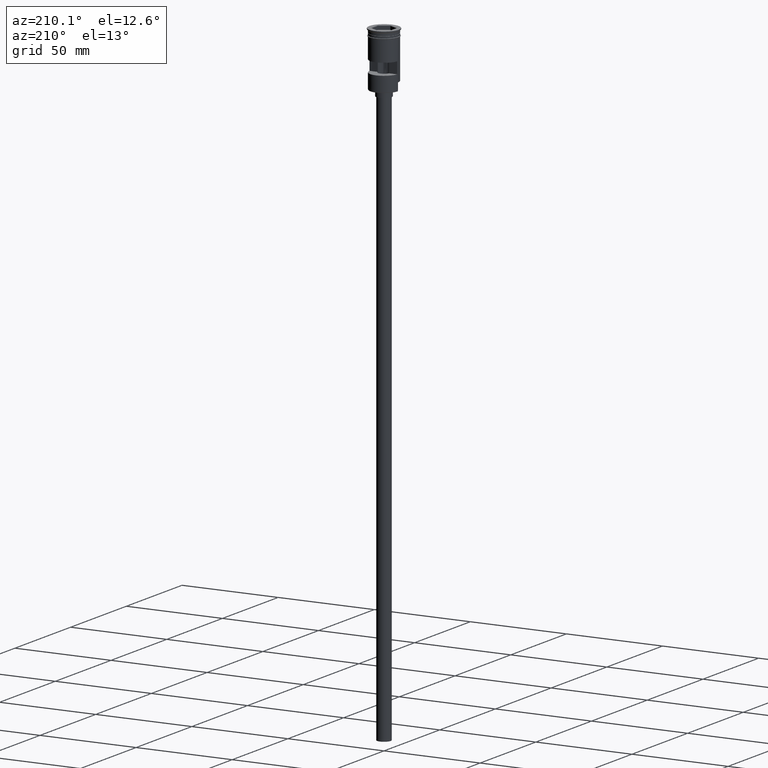
[diagram: clean part render]
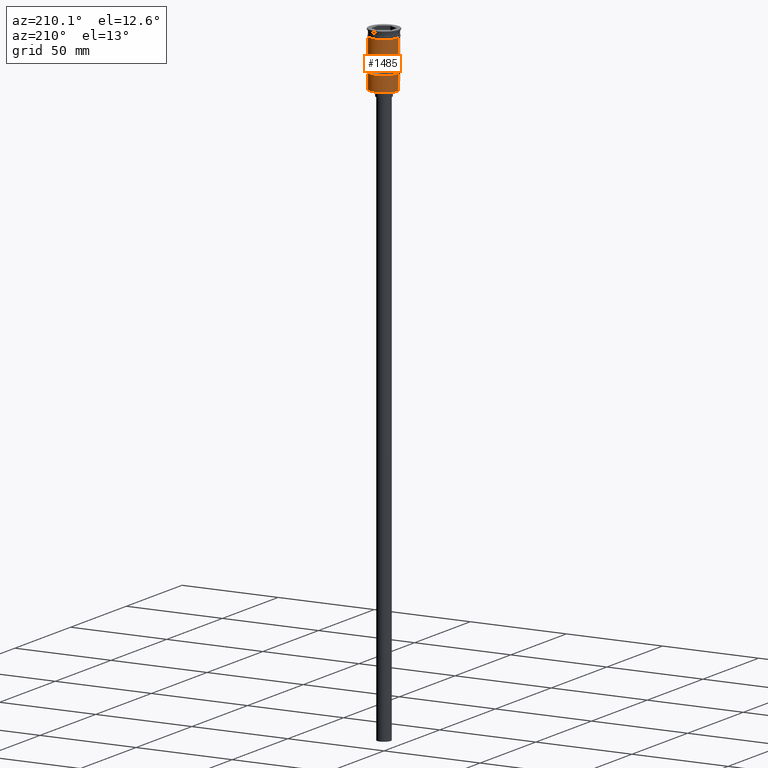
[diagram: same view with one face highlighted and labeled with its STEP entity id]
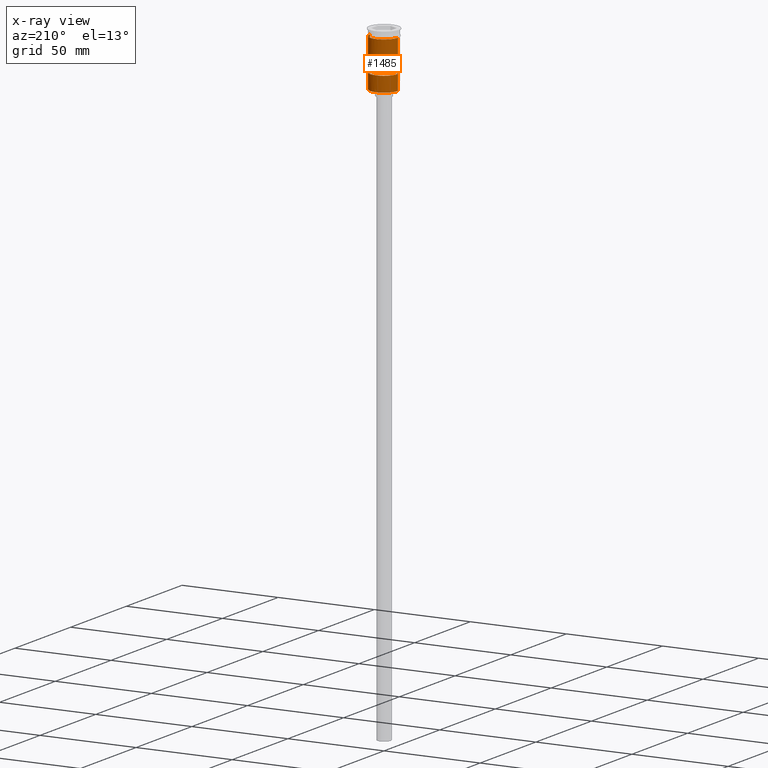
[diagram: x-ray of the same camera — body ghosted, the highlighted face saturated]
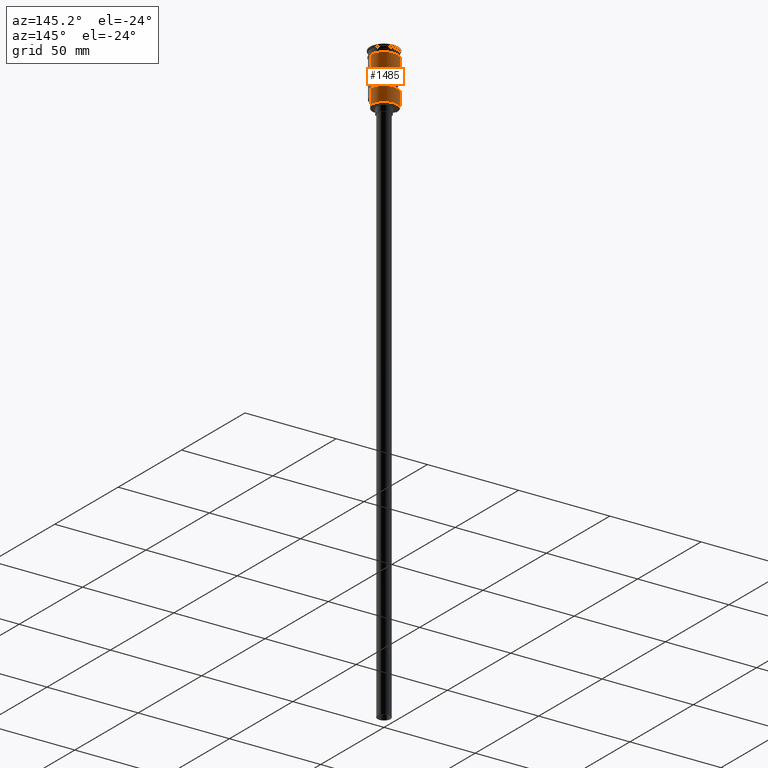
[diagram: same view with one face highlighted and labeled with its STEP entity id]
A machine part, auxiliary view. The second image highlights one B-rep face of the part: STEP entity #1485.
The next image is the same camera in x-ray: the body ghosted, the highlighted face saturated — about 0% of this face is hidden behind the body in this view.
A second angle (auxiliary view) of the same face is appended — the face is thin or edge-on in the first view.
In plain terms, the highlighted cylindrical surface (edge-blend (fillet) strip) has radius 7.25 mm, axis along (-0, -0, 1).
Its self-contained STEP definition (entity closure, byte-faithful):
#8 = ORIENTED_EDGE ( 'NONE', *, *, #1208, .F. ) ;
#38 = VECTOR ( 'NONE', #277, 1000.000000000000000 ) ;
#113 = CYLINDRICAL_SURFACE ( 'NONE', #1157, 7.249999999999997335 ) ;
#129 = EDGE_CURVE ( 'NONE', #1249, #1001, #1427, .T. ) ;
#138 = ORIENTED_EDGE ( 'NONE', *, *, #581, .F. ) ;
#170 = VERTEX_POINT ( 'NONE', #366 ) ;
#187 = DIRECTION ( 'NONE',  ( -0.000000000000000000, -0.000000000000000000, 1.000000000000000000 ) ) ;
#193 = DIRECTION ( 'NONE',  ( -1.000000000000000000, 0.000000000000000000, 0.000000000000000000 ) ) ;
#209 = ORIENTED_EDGE ( 'NONE', *, *, #1123, .F. ) ;
#215 = EDGE_CURVE ( 'NONE', #1418, #1249, #1209, .T. ) ;
#248 = CARTESIAN_POINT ( 'NONE',  ( 0.000000000000000000, 0.000000000000000000, -14.50000000000000178 ) ) ;
#251 = CARTESIAN_POINT ( 'NONE',  ( -7.225129756620288113, 0.5999999999999999778, -14.50000000000000178 ) ) ;
#277 = DIRECTION ( 'NONE',  ( -0.000000000000000000, -0.000000000000000000, 1.000000000000000000 ) ) ;
#281 = VERTEX_POINT ( 'NONE', #425 ) ;
#286 = LINE ( 'NONE', #884, #879 ) ;
#300 = VERTEX_POINT ( 'NONE', #971 ) ;
#308 = EDGE_CURVE ( 'NONE', #281, #1313, #724, .T. ) ;
#315 = CARTESIAN_POINT ( 'NONE',  ( -7.249999999999994671, 0.000000000000000000, -28.50000000000000000 ) ) ;
#343 = FACE_OUTER_BOUND ( 'NONE', #530, .T. ) ;
#366 = CARTESIAN_POINT ( 'NONE',  ( 7.249999999999999112, 0.000000000000000000, -3.799999999999998490 ) ) ;
#379 = VERTEX_POINT ( 'NONE', #251 ) ;
#394 = ORIENTED_EDGE ( 'NONE', *, *, #968, .F. ) ;
#418 = CARTESIAN_POINT ( 'NONE',  ( -7.225129756620288113, 0.5999999999999999778, 0.000000000000000000 ) ) ;
#425 = CARTESIAN_POINT ( 'NONE',  ( 7.225129756620287225, 0.5999999999999999778, -14.50000000000000178 ) ) ;
#427 = CARTESIAN_POINT ( 'NONE',  ( -7.249999999999994671, 0.000000000000000000, -24.29999999999998295 ) ) ;
#470 = CARTESIAN_POINT ( 'NONE',  ( 7.249999999999994671, 8.878689293818304158E-16, -28.50000000000000000 ) ) ;
#471 = FACE_BOUND ( 'NONE', #871, .T. ) ;
#530 = EDGE_LOOP ( 'NONE', ( #858, #954, #1064, #8, #138, #659 ) ) ;
#534 = CARTESIAN_POINT ( 'NONE',  ( 7.225129756620288113, 0.5999999999999999778, 0.000000000000000000 ) ) ;
#549 = EDGE_CURVE ( 'NONE', #170, #1108, #630, .T. ) ;
#567 = ORIENTED_EDGE ( 'NONE', *, *, #308, .F. ) ;
#581 = EDGE_CURVE ( 'NONE', #1418, #1140, #951, .T. ) ;
#610 = VECTOR ( 'NONE', #1516, 1000.000000000000000 ) ;
#614 = DIRECTION ( 'NONE',  ( -0.000000000000000000, -0.000000000000000000, 1.000000000000000000 ) ) ;
#630 = CIRCLE ( 'NONE', #1333, 7.249999999999999112 ) ;
#633 = AXIS2_PLACEMENT_3D ( 'NONE', #869, #754, #1506 ) ;
#649 = CARTESIAN_POINT ( 'NONE',  ( 7.249999999999997335, 8.878689293818308102E-16, -24.29999999999998295 ) ) ;
#659 = ORIENTED_EDGE ( 'NONE', *, *, #215, .T. ) ;
#672 = ORIENTED_EDGE ( 'NONE', *, *, #738, .F. ) ;
#717 = CARTESIAN_POINT ( 'NONE',  ( 0.000000000000000000, 0.000000000000000000, 0.000000000000000000 ) ) ;
#724 = LINE ( 'NONE', #534, #610 ) ;
#738 = EDGE_CURVE ( 'NONE', #1313, #300, #1464, .T. ) ;
#754 = DIRECTION ( 'NONE',  ( -0.000000000000000000, -5.217213461584384723E-16, 1.000000000000000000 ) ) ;
#819 = DIRECTION ( 'NONE',  ( -0.000000000000000000, -0.000000000000000000, 1.000000000000000000 ) ) ;
#858 = ORIENTED_EDGE ( 'NONE', *, *, #129, .T. ) ;
#863 = CARTESIAN_POINT ( 'NONE',  ( 0.000000000000000000, 0.000000000000000000, -3.799999999999998490 ) ) ;
#869 = CARTESIAN_POINT ( 'NONE',  ( 0.000000000000000000, 0.000000000000000000, -20.50000000000000000 ) ) ;
#871 = EDGE_LOOP ( 'NONE', ( #672, #567, #209, #394 ) ) ;
#879 = VECTOR ( 'NONE', #1136, 1000.000000000000000 ) ;
#884 = CARTESIAN_POINT ( 'NONE',  ( 7.249999999999997335, 0.000000000000000000, 0.000000000000000000 ) ) ;
#919 = CARTESIAN_POINT ( 'NONE',  ( -7.249999999999997335, 8.878689293818306130E-16, 0.000000000000000000 ) ) ;
#951 = LINE ( 'NONE', #470, #1462 ) ;
#954 = ORIENTED_EDGE ( 'NONE', *, *, #1390, .T. ) ;
#968 = EDGE_CURVE ( 'NONE', #300, #379, #1414, .T. ) ;
#971 = CARTESIAN_POINT ( 'NONE',  ( -7.225129756620288113, 0.5999999999999999778, -20.50000000000000000 ) ) ;
#982 = DIRECTION ( 'NONE',  ( -0.000000000000000000, -0.000000000000000000, 1.000000000000000000 ) ) ;
#1000 = VECTOR ( 'NONE', #187, 1000.000000000000000 ) ;
#1001 = VERTEX_POINT ( 'NONE', #427 ) ;
#1016 = CARTESIAN_POINT ( 'NONE',  ( -7.249999999999994671, 0.000000000000000000, -28.29999999999996874 ) ) ;
#1064 = ORIENTED_EDGE ( 'NONE', *, *, #549, .F. ) ;
#1067 = LINE ( 'NONE', #919, #1309 ) ;
#1075 = CARTESIAN_POINT ( 'NONE',  ( 7.225129756620287225, 0.5999999999999999778, -20.50000000000000000 ) ) ;
#1084 = AXIS2_PLACEMENT_3D ( 'NONE', #248, #1597, #1475 ) ;
#1108 = VERTEX_POINT ( 'NONE', #1241 ) ;
#1116 = DIRECTION ( 'NONE',  ( 1.000000000000000000, 0.000000000000000000, 0.000000000000000000 ) ) ;
#1123 = EDGE_CURVE ( 'NONE', #379, #281, #1543, .T. ) ;
#1136 = DIRECTION ( 'NONE',  ( -0.000000000000000000, -0.000000000000000000, 1.000000000000000000 ) ) ;
#1140 = VERTEX_POINT ( 'NONE', #649 ) ;
#1157 = AXIS2_PLACEMENT_3D ( 'NONE', #717, #614, #1116 ) ;
#1208 = EDGE_CURVE ( 'NONE', #1140, #170, #286, .T. ) ;
#1209 = CIRCLE ( 'NONE', #1238, 7.249999999999997335 ) ;
#1238 = AXIS2_PLACEMENT_3D ( 'NONE', #1294, #1408, #193 ) ;
#1241 = CARTESIAN_POINT ( 'NONE',  ( -7.250000000000000000, 8.878689293818310074E-16, -3.799999999999998490 ) ) ;
#1249 = VERTEX_POINT ( 'NONE', #1016 ) ;
#1294 = CARTESIAN_POINT ( 'NONE',  ( 0.000000000000000000, 0.000000000000000000, -28.29999999999996874 ) ) ;
#1309 = VECTOR ( 'NONE', #819, 1000.000000000000000 ) ;
#1313 = VERTEX_POINT ( 'NONE', #1075 ) ;
#1333 = AXIS2_PLACEMENT_3D ( 'NONE', #863, #982, #1577 ) ;
#1390 = EDGE_CURVE ( 'NONE', #1001, #1108, #1067, .T. ) ;
#1408 = DIRECTION ( 'NONE',  ( 0.000000000000000000, 0.000000000000000000, 1.000000000000000000 ) ) ;
#1414 = LINE ( 'NONE', #418, #38 ) ;
#1418 = VERTEX_POINT ( 'NONE', #1532 ) ;
#1427 = LINE ( 'NONE', #315, #1000 ) ;
#1462 = VECTOR ( 'NONE', #1566, 1000.000000000000000 ) ;
#1464 = CIRCLE ( 'NONE', #633, 7.249999999999997335 ) ;
#1475 = DIRECTION ( 'NONE',  ( 0.000000000000000000, -1.000000000000000000, 2.392722035830079465E-16 ) ) ;
#1485 = ADVANCED_FACE ( 'NONE', ( #471, #343 ), #113, .T. ) ;
#1506 = DIRECTION ( 'NONE',  ( 0.000000000000000000, 1.000000000000000000, 4.785444071660158930E-16 ) ) ;
#1516 = DIRECTION ( 'NONE',  ( 0.000000000000000000, 0.000000000000000000, -1.000000000000000000 ) ) ;
#1532 = CARTESIAN_POINT ( 'NONE',  ( 7.249999999999994671, 8.878689293818304158E-16, -28.29999999999996874 ) ) ;
#1543 = CIRCLE ( 'NONE', #1084, 7.249999999999997335 ) ;
#1566 = DIRECTION ( 'NONE',  ( -0.000000000000000000, -0.000000000000000000, 1.000000000000000000 ) ) ;
#1577 = DIRECTION ( 'NONE',  ( 1.000000000000000000, 0.000000000000000000, 0.000000000000000000 ) ) ;
#1597 = DIRECTION ( 'NONE',  ( -0.000000000000000000, -2.608606730792192361E-16, -1.000000000000000000 ) ) ;